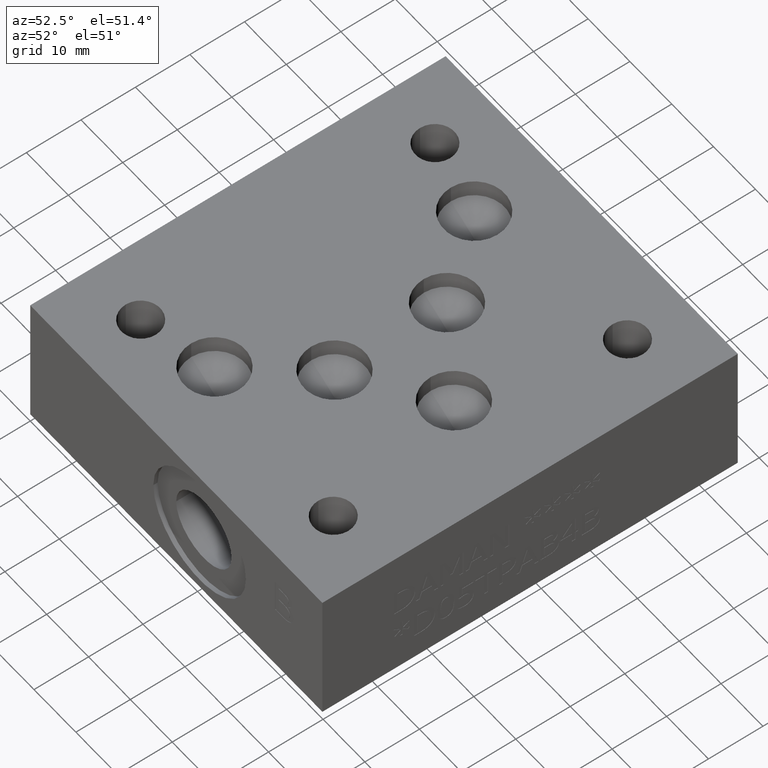
[diagram: clean part render]
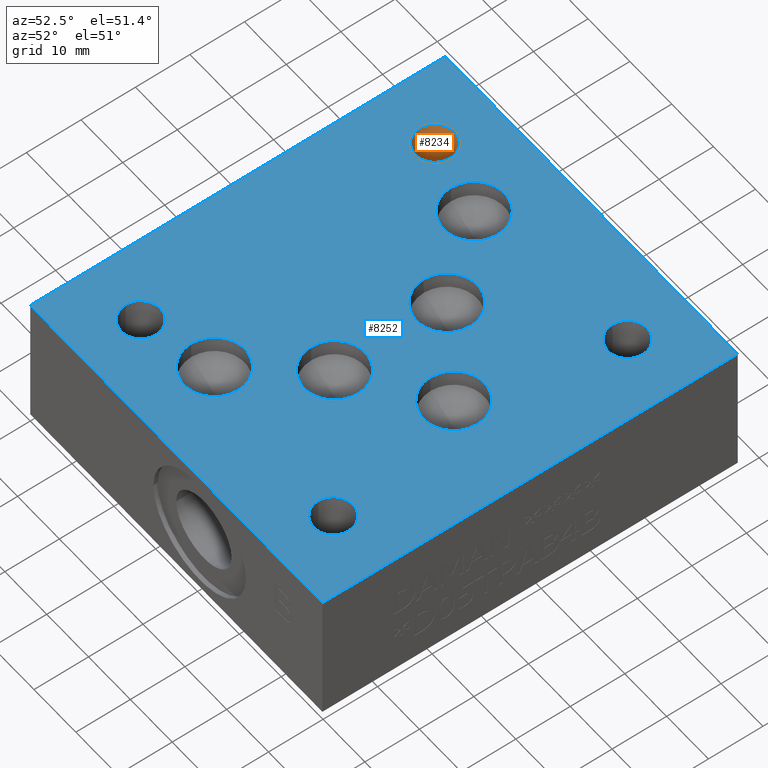
[diagram: same view with the hole feature highlighted: cylindrical wall and planar end face, labeled with their STEP entity ids]
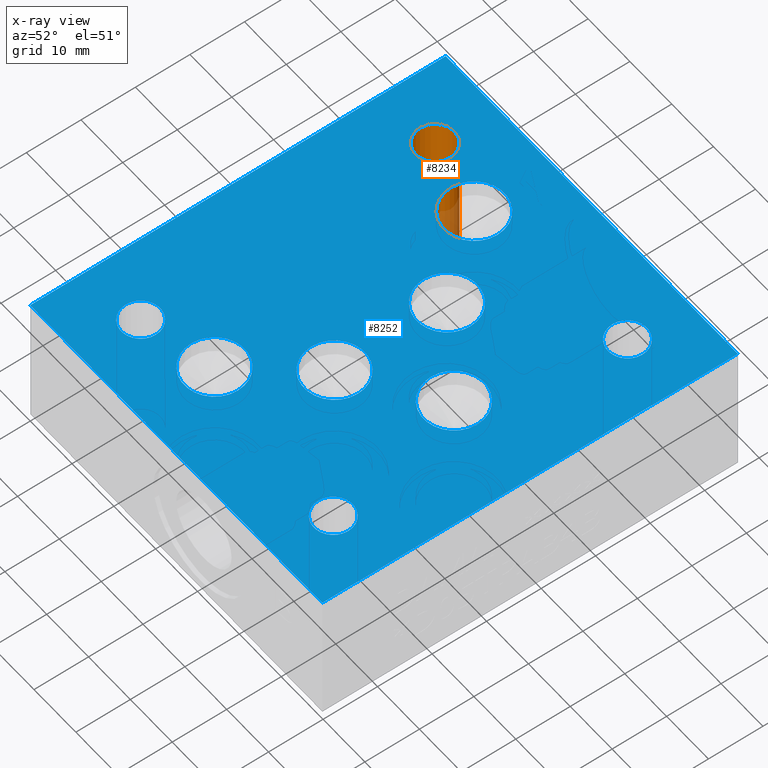
[diagram: x-ray of the same camera — body ghosted, the hole faces saturated]
A machine part, auxiliary view. The highlighted faces form one hole feature of diameter 7.1374 mm: the cylindrical wall (entity #8234, orange) and its adjacent planar end face (entity #8252, blue) — they share a circular edge in the B-rep.
The next image is the same camera in x-ray (body ghosted, the hole faces saturated) — the bore reads through the body.
Wall:
#36=CYLINDRICAL_SURFACE('',#8639,3.5687);
#93=CIRCLE('',#8601,3.5687);
#94=CIRCLE('',#8602,3.5687);
#115=CIRCLE('',#8640,3.5687);
#889=FACE_OUTER_BOUND('',#1372,.T.);
#1372=EDGE_LOOP('',(#7289,#7290,#7291,#7292,#7293,#7294,#7295,#7296));
#2226=LINE('',#13680,#3086);
#2227=LINE('',#13682,#3087);
#2245=LINE('',#13823,#3105);
#3086=VECTOR('',#10142,10.);
#3087=VECTOR('',#10143,10.);
#3105=VECTOR('',#10261,3.5687);
#3303=B_SPLINE_CURVE_WITH_KNOTS('',3,(#13656,#13657,#13658,#13659,#13660,
#13661,#13662,#13663,#13664,#13665,#13666,#13667,#13668,#13669,#13670,#13671,
#13672,#13673,#13674,#13675,#13676),.UNSPECIFIED.,.F.,.F.,(4,3,2,2,2,2,
2,2,2,4),(-0.085855247903654,0.,0.133830508217906,0.267661016435811,0.401094552922926,
0.53452808941004,0.668148513987796,0.801768938565551,0.936050425582442,
0.986820283620559),.UNSPECIFIED.);
#3999=VERTEX_POINT('',#13654);
#4000=VERTEX_POINT('',#13655);
#4001=VERTEX_POINT('',#13679);
#4002=VERTEX_POINT('',#13681);
#4011=VERTEX_POINT('',#13750);
#4031=VERTEX_POINT('',#13821);
#5083=EDGE_CURVE('',#3999,#4000,#3303,.T.);
#5085=EDGE_CURVE('',#4000,#4001,#2226,.T.);
#5086=EDGE_CURVE('',#4002,#3999,#2227,.T.);
#5099=EDGE_CURVE('',#4002,#4011,#93,.T.);
#5100=EDGE_CURVE('',#4011,#4001,#94,.T.);
#5133=EDGE_CURVE('',#4031,#4031,#115,.T.);
#5134=EDGE_CURVE('',#4031,#4011,#2245,.T.);
#7289=ORIENTED_EDGE('',*,*,#5133,.F.);
#7290=ORIENTED_EDGE('',*,*,#5134,.T.);
#7291=ORIENTED_EDGE('',*,*,#5099,.F.);
#7292=ORIENTED_EDGE('',*,*,#5086,.T.);
#7293=ORIENTED_EDGE('',*,*,#5083,.T.);
#7294=ORIENTED_EDGE('',*,*,#5085,.T.);
#7295=ORIENTED_EDGE('',*,*,#5100,.F.);
#7296=ORIENTED_EDGE('',*,*,#5134,.F.);
#8234=ADVANCED_FACE('',(#889),#36,.F.);
#8601=AXIS2_PLACEMENT_3D('',#13751,#10169,#10170);
#8602=AXIS2_PLACEMENT_3D('',#13752,#10171,#10172);
#8639=AXIS2_PLACEMENT_3D('',#13820,#10257,#10258);
#8640=AXIS2_PLACEMENT_3D('',#13822,#10259,#10260);
#10142=DIRECTION('',(0.,0.,-1.));
#10143=DIRECTION('',(0.,0.,1.));
#10169=DIRECTION('center_axis',(0.,0.,1.));
#10170=DIRECTION('ref_axis',(1.,0.,0.));
#10171=DIRECTION('center_axis',(0.,0.,1.));
#10172=DIRECTION('ref_axis',(1.,0.,0.));
#10257=DIRECTION('center_axis',(0.,0.,1.));
#10258=DIRECTION('ref_axis',(1.,0.,0.));
#10259=DIRECTION('center_axis',(0.,0.,-1.));
#10260=DIRECTION('ref_axis',(1.,0.,0.));
#10261=DIRECTION('',(0.,0.,-1.));
#13654=CARTESIAN_POINT('',(15.3651992468444,65.9657310617114,2.06039));
#13655=CARTESIAN_POINT('',(8.44095075315562,64.2346689382886,2.06039));
#13656=CARTESIAN_POINT('Ctrl Pts',(15.3651992468444,65.9657310617114,2.06039));
#13657=CARTESIAN_POINT('Ctrl Pts',(15.4373505150589,65.6725595924395,2.06166883818672));
#13658=CARTESIAN_POINT('Ctrl Pts',(15.4705464881325,65.3736744946827,2.06293236876208));
#13659=CARTESIAN_POINT('Ctrl Pts',(15.4685096073961,65.0875,2.06410836240353));
#13660=CARTESIAN_POINT('Ctrl Pts',(15.4653345331778,64.6414133716629,2.06594149235819));
#13661=CARTESIAN_POINT('Ctrl Pts',(15.3731870996312,64.1660886026042,2.06780611013065));
#13662=CARTESIAN_POINT('Ctrl Pts',(15.0057372158041,63.2924741466259,2.07103266802707));
#13663=CARTESIAN_POINT('Ctrl Pts',(14.7304347330345,62.8941844726241,2.07239440581187));
#13664=CARTESIAN_POINT('Ctrl Pts',(14.0981145556612,62.2666218351394,2.07433585679238));
#13665=CARTESIAN_POINT('Ctrl Pts',(13.699062236998,61.9948956864923,2.07504764444942));
#13666=CARTESIAN_POINT('Ctrl Pts',(12.8255187193304,61.6340832988044,2.0756371896087));
#13667=CARTESIAN_POINT('Ctrl Pts',(12.3510275161424,61.5449970697914,2.07551488529606));
#13668=CARTESIAN_POINT('Ctrl Pts',(11.4608495248704,61.5434131206802,2.07460039185034));
#13669=CARTESIAN_POINT('Ctrl Pts',(10.9854218482197,61.6310544532302,2.07374582629049));
#13670=CARTESIAN_POINT('Ctrl Pts',(10.109645475891,61.9896793160665,2.07135835562356));
#13671=CARTESIAN_POINT('Ctrl Pts',(9.70929676633246,62.2606628138064,2.06982565330907));
#13672=CARTESIAN_POINT('Ctrl Pts',(9.07388916668881,62.8881236035328,2.0665821873103));
#13673=CARTESIAN_POINT('Ctrl Pts',(8.79693512294525,63.2871955758229,2.06465256340448));
#13674=CARTESIAN_POINT('Ctrl Pts',(8.54219157705749,63.8907234082006,2.06190778725205));
#13675=CARTESIAN_POINT('Ctrl Pts',(8.48486525530763,64.0617098609266,2.06114584684899));
#13676=CARTESIAN_POINT('Ctrl Pts',(8.44095075315562,64.2346689382886,2.06039));
#13679=CARTESIAN_POINT('',(8.44095075315562,64.2346689382886,0.));
#13680=CARTESIAN_POINT('',(8.44095075315562,64.2346689382886,1.030195));
#13681=CARTESIAN_POINT('',(15.3651992468444,65.9657310617114,0.));
#13682=CARTESIAN_POINT('',(15.3651992468444,65.9657310617114,1.030195));
#13750=CARTESIAN_POINT('',(8.3312,65.1129,0.));
#13751=CARTESIAN_POINT('Origin',(11.8999,65.1129,0.));
#13752=CARTESIAN_POINT('Origin',(11.8999,65.1129,0.));
#13820=CARTESIAN_POINT('Origin',(11.8999,65.1129,-81.0453968004253));
#13821=CARTESIAN_POINT('',(8.3312,65.1129,25.4));
#13822=CARTESIAN_POINT('Origin',(11.8999,65.1129,25.4));
#13823=CARTESIAN_POINT('',(8.3312,65.1129,-81.0453968004253));
End face:
#115=CIRCLE('',#8640,3.5687);
#116=CIRCLE('',#8642,3.5687);
#117=CIRCLE('',#8644,3.5687);
#118=CIRCLE('',#8646,3.5687);
#120=CIRCLE('',#8650,5.55625);
#122=CIRCLE('',#8654,5.55625);
#124=CIRCLE('',#8658,5.55625);
#126=CIRCLE('',#8662,5.5626);
#128=CIRCLE('',#8666,5.5626);
#185=FACE_BOUND('',#1391,.T.);
#186=FACE_BOUND('',#1392,.T.);
#187=FACE_BOUND('',#1393,.T.);
#188=FACE_BOUND('',#1394,.T.);
#189=FACE_BOUND('',#1395,.T.);
#190=FACE_BOUND('',#1396,.T.);
#191=FACE_BOUND('',#1397,.T.);
#192=FACE_BOUND('',#1398,.T.);
#193=FACE_BOUND('',#1399,.T.);
#480=PLANE('',#8671);
#907=FACE_OUTER_BOUND('',#1390,.T.);
#1390=EDGE_LOOP('',(#7373,#7374,#7375,#7376));
#1391=EDGE_LOOP('',(#7377));
#1392=EDGE_LOOP('',(#7378));
#1393=EDGE_LOOP('',(#7379));
#1394=EDGE_LOOP('',(#7380));
#1395=EDGE_LOOP('',(#7381));
#1396=EDGE_LOOP('',(#7382));
#1397=EDGE_LOOP('',(#7383));
#1398=EDGE_LOOP('',(#7384));
#1399=EDGE_LOOP('',(#7385));
#1747=LINE('',#12219,#2607);
#2161=LINE('',#13203,#3021);
#2207=LINE('',#13537,#3067);
#2259=LINE('',#13882,#3119);
#2607=VECTOR('',#9227,10.);
#3021=VECTOR('',#9953,10.);
#3067=VECTOR('',#10025,10.);
#3119=VECTOR('',#10329,10.);
#3630=VERTEX_POINT('',#12216);
#3631=VERTEX_POINT('',#12218);
#3917=VERTEX_POINT('',#13201);
#3968=VERTEX_POINT('',#13536);
#4031=VERTEX_POINT('',#13821);
#4032=VERTEX_POINT('',#13825);
#4033=VERTEX_POINT('',#13829);
#4034=VERTEX_POINT('',#13833);
#4037=VERTEX_POINT('',#13842);
#4040=VERTEX_POINT('',#13851);
#4043=VERTEX_POINT('',#13860);
#4046=VERTEX_POINT('',#13869);
#4049=VERTEX_POINT('',#13878);
#4535=EDGE_CURVE('',#3631,#3630,#1747,.T.);
#4965=EDGE_CURVE('',#3630,#3917,#2161,.T.);
#5040=EDGE_CURVE('',#3968,#3631,#2207,.T.);
#5133=EDGE_CURVE('',#4031,#4031,#115,.T.);
#5135=EDGE_CURVE('',#4032,#4032,#116,.T.);
#5137=EDGE_CURVE('',#4033,#4033,#117,.T.);
#5139=EDGE_CURVE('',#4034,#4034,#118,.T.);
#5143=EDGE_CURVE('',#4037,#4037,#120,.T.);
#5147=EDGE_CURVE('',#4040,#4040,#122,.T.);
#5151=EDGE_CURVE('',#4043,#4043,#124,.T.);
#5155=EDGE_CURVE('',#4046,#4046,#126,.T.);
#5159=EDGE_CURVE('',#4049,#4049,#128,.T.);
#5161=EDGE_CURVE('',#3917,#3968,#2259,.T.);
#7373=ORIENTED_EDGE('',*,*,#5040,.T.);
#7374=ORIENTED_EDGE('',*,*,#4535,.T.);
#7375=ORIENTED_EDGE('',*,*,#4965,.T.);
#7376=ORIENTED_EDGE('',*,*,#5161,.T.);
#7377=ORIENTED_EDGE('',*,*,#5133,.T.);
#7378=ORIENTED_EDGE('',*,*,#5135,.T.);
#7379=ORIENTED_EDGE('',*,*,#5137,.T.);
#7380=ORIENTED_EDGE('',*,*,#5139,.T.);
#7381=ORIENTED_EDGE('',*,*,#5143,.T.);
#7382=ORIENTED_EDGE('',*,*,#5147,.T.);
#7383=ORIENTED_EDGE('',*,*,#5151,.T.);
#7384=ORIENTED_EDGE('',*,*,#5155,.T.);
#7385=ORIENTED_EDGE('',*,*,#5159,.T.);
#8252=ADVANCED_FACE('',(#907,#185,#186,#187,#188,#189,#190,#191,#192,#193),
#480,.T.);
#8640=AXIS2_PLACEMENT_3D('',#13822,#10259,#10260);
#8642=AXIS2_PLACEMENT_3D('',#13826,#10264,#10265);
#8644=AXIS2_PLACEMENT_3D('',#13830,#10269,#10270);
#8646=AXIS2_PLACEMENT_3D('',#13834,#10274,#10275);
#8650=AXIS2_PLACEMENT_3D('',#13843,#10284,#10285);
#8654=AXIS2_PLACEMENT_3D('',#13852,#10294,#10295);
#8658=AXIS2_PLACEMENT_3D('',#13861,#10304,#10305);
#8662=AXIS2_PLACEMENT_3D('',#13870,#10314,#10315);
#8666=AXIS2_PLACEMENT_3D('',#13879,#10324,#10325);
#8671=AXIS2_PLACEMENT_3D('',#13886,#10336,#10337);
#9227=DIRECTION('',(0.,1.,0.));
#9953=DIRECTION('',(-1.,0.,0.));
#10025=DIRECTION('',(1.,0.,0.));
#10259=DIRECTION('center_axis',(0.,0.,-1.));
#10260=DIRECTION('ref_axis',(1.,0.,0.));
#10264=DIRECTION('center_axis',(0.,0.,-1.));
#10265=DIRECTION('ref_axis',(1.,0.,0.));
#10269=DIRECTION('center_axis',(0.,0.,-1.));
#10270=DIRECTION('ref_axis',(1.,0.,0.));
#10274=DIRECTION('center_axis',(0.,0.,-1.));
#10275=DIRECTION('ref_axis',(1.,0.,0.));
#10284=DIRECTION('center_axis',(0.,0.,-1.));
#10285=DIRECTION('ref_axis',(1.,0.,0.));
#10294=DIRECTION('center_axis',(0.,0.,-1.));
#10295=DIRECTION('ref_axis',(1.,0.,0.));
#10304=DIRECTION('center_axis',(0.,0.,-1.));
#10305=DIRECTION('ref_axis',(1.,0.,0.));
#10314=DIRECTION('center_axis',(0.,0.,-1.));
#10315=DIRECTION('ref_axis',(1.,0.,0.));
#10324=DIRECTION('center_axis',(0.,0.,-1.));
#10325=DIRECTION('ref_axis',(1.,0.,0.));
#10329=DIRECTION('',(0.,-1.,0.));
#10336=DIRECTION('center_axis',(0.,0.,1.));
#10337=DIRECTION('ref_axis',(1.,0.,0.));
#12216=CARTESIAN_POINT('',(69.85,76.2,25.4));
#12218=CARTESIAN_POINT('',(69.85,0.,25.4));
#12219=CARTESIAN_POINT('',(69.85,0.,25.4));
#13201=CARTESIAN_POINT('',(0.,76.2,25.4));
#13203=CARTESIAN_POINT('',(69.85,76.2,25.4));
#13536=CARTESIAN_POINT('',(0.,0.,25.4));
#13537=CARTESIAN_POINT('',(0.,0.,25.4));
#13821=CARTESIAN_POINT('',(8.3312,65.1129,25.4));
#13822=CARTESIAN_POINT('Origin',(11.8999,65.1129,25.4));
#13825=CARTESIAN_POINT('',(8.3439,11.1252,25.4));
#13826=CARTESIAN_POINT('Origin',(11.9126,11.1252,25.4));
#13829=CARTESIAN_POINT('',(54.3814,11.1252,25.4));
#13830=CARTESIAN_POINT('Origin',(57.9501,11.1252,25.4));
#13833=CARTESIAN_POINT('',(54.3814,65.1002,25.4));
#13834=CARTESIAN_POINT('Origin',(57.9501,65.1002,25.4));
#13842=CARTESIAN_POINT('',(30.98673,27.78252,25.4));
#13843=CARTESIAN_POINT('Origin',(36.54298,27.78252,25.4));
#13851=CARTESIAN_POINT('',(30.98165,48.41748,25.4));
#13852=CARTESIAN_POINT('Origin',(36.5379,48.41748,25.4));
#13860=CARTESIAN_POINT('',(19.87677,14.2875,25.4));
#13861=CARTESIAN_POINT('Origin',(25.43302,14.2875,25.4));
#13869=CARTESIAN_POINT('',(46.0756,38.1,25.4));
#13870=CARTESIAN_POINT('Origin',(51.6382,38.1,25.4));
#13878=CARTESIAN_POINT('',(19.8628,61.9252,25.4));
#13879=CARTESIAN_POINT('Origin',(25.4254,61.9252,25.4));
#13882=CARTESIAN_POINT('',(0.,76.2,25.4));
#13886=CARTESIAN_POINT('Origin',(34.925,38.1,25.4));